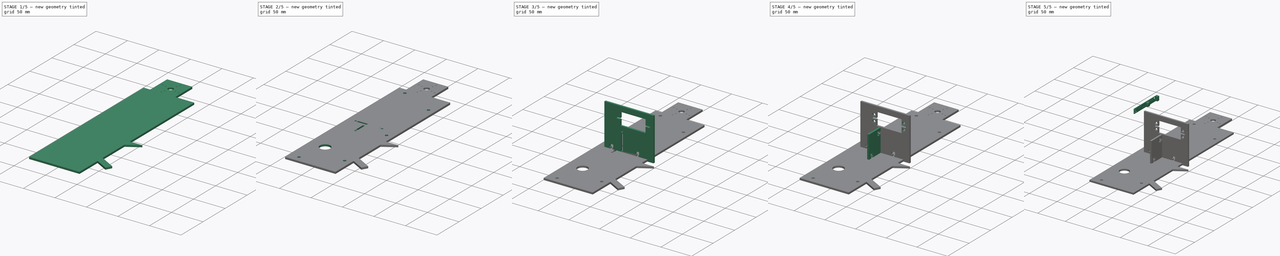
[diagram: build sequence overview — one tinted view per stage of 5, left to right]
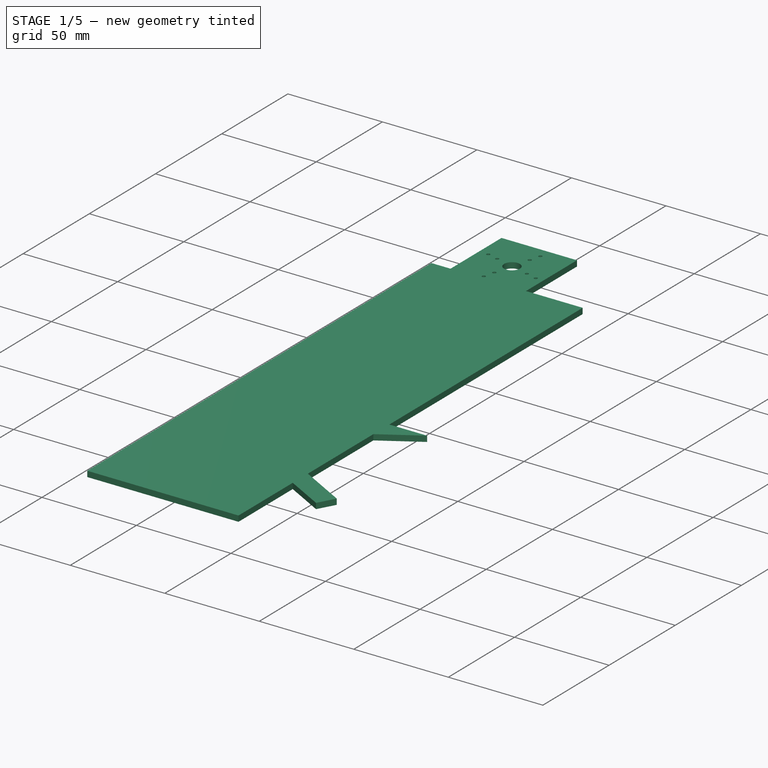
[diagram: stage 1 of 5 — iso view after this stage's code; geometry added in this stage tinted green]
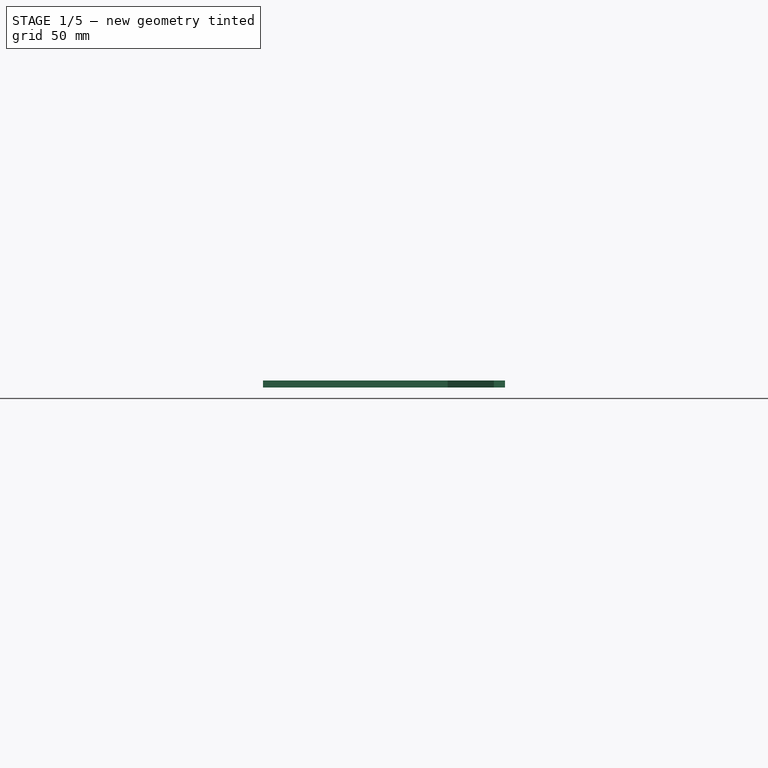
[diagram: stage 1 of 5 — front view after this stage's code; geometry added in this stage tinted green]
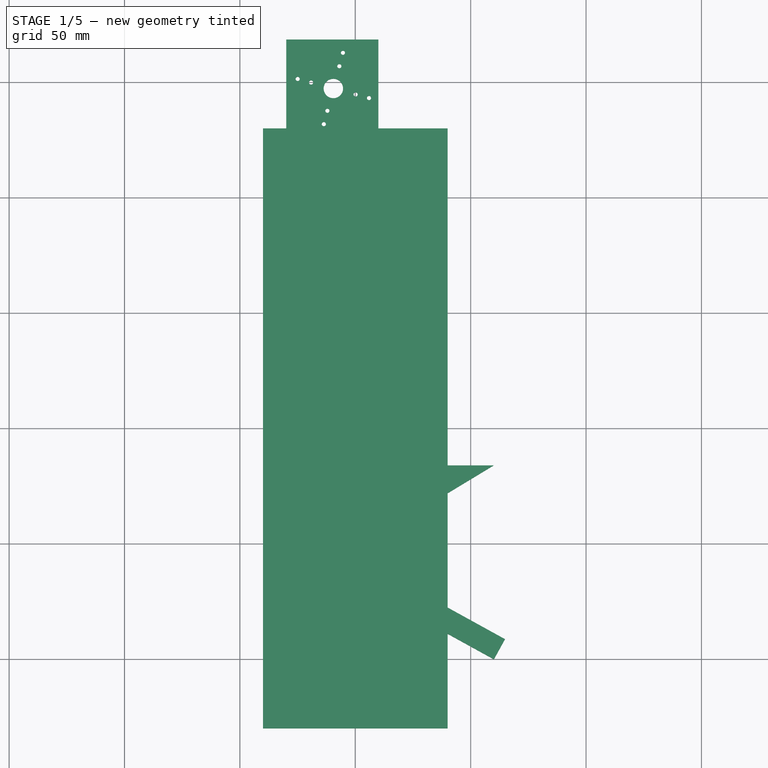
[diagram: stage 1 of 5 — top view after this stage's code; geometry added in this stage tinted green]
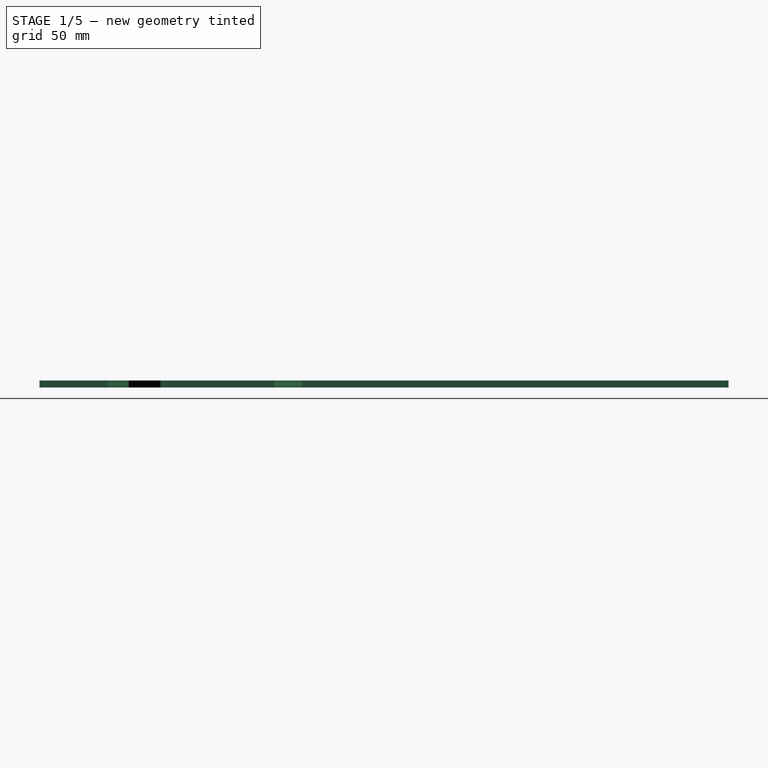
[diagram: stage 1 of 5 — right view after this stage's code; geometry added in this stage tinted green]
FCSTD DOCUMENT  (FreeCAD 0.20R29603 (Git))
Label: Alpha
License: All rights reserved
LicenseURL: http://en.wikipedia.org/wiki/All_rights_reserved
objects: Sketcher::SketchObject×14, Part::Feature×7, PartDesign::Pad×5, PartDesign::Body×5, PartDesign::Pocket×5, PartDesign::Hole×4, Part::Compound2×1
note: 54 computed .brp shape members not serialized (recipe doc carries the construction recipe); baked Part::Feature solids carry a one-line shape summary decoded from their .brp

FEATURE [PartDesign::Body] Body001  label="CameraHolder"
  Group = -> [Sketch001,Pad001,Sketch002,Hole,Sketch003,Hole001]
  Origin = -> Origin001
  Placement = pos=(-130,139,-9) rot=(0,1,0;1.5708rad)
  Tip = -> Hole001
FEATURE [Sketcher::SketchObject] Sketch
  FullyConstrained = true
  MapMode = 5
  Support = -> [XY_Plane]
  sketch-geometry (4):
    g0: LineSegment StartX=-40 StartY=130 StartZ=0 EndX=40 EndY=130 EndZ=0
    g1: LineSegment StartX=40 StartY=130 StartZ=0 EndX=40 EndY=-130 EndZ=0
    g2: LineSegment StartX=40 StartY=-130 StartZ=0 EndX=-40 EndY=-130 EndZ=0
    g3: LineSegment StartX=-40 StartY=-130 StartZ=0 EndX=-40 EndY=130 EndZ=0
  constraints (10):
    c: Coincident(g0,g1)
    c: Coincident(g1,g2)
    c: Coincident(g2,g3)
    c: Coincident(g3,g0)
    c: Horizontal(g2)
    c: Vertical(g3)
    c: Distance(g0) = 80
    c: Distance(g1) = 260
    c: Symmetric(g0,g0,g-2)
    c: Symmetric(g0,g1,g-1)
FEATURE [PartDesign::Pad] Pad
  Direction = (0,0,1)
  Length = 3
  Length2 = 10
  Profile = -> Sketch
  ReferenceAxis = -> Sketch [N_Axis]
  Type = 0
FEATURE [PartDesign::Body] Body  label="TopPanel"
  Group = -> [Sketch,Pad,Sketch004,Hole002,Sketch006,Pocket,Sketch012,Pocket003]
  Origin = -> Origin
  Placement = pos=(-170,141,81) rot=(0,0,1;0rad)
  Tip = -> Pocket003
FEATURE [Sketcher::SketchObject] Sketch013
  FullyConstrained = false
  MapMode = 5
  Support = -> [XY_Plane004]
  sketch-geometry (12):
    g0: LineSegment StartX=-29.905 StartY=168.516 StartZ=0 EndX=10 EndY=168.516 EndZ=0
    g1: LineSegment StartX=-10 StartY=-61.484 StartZ=0 EndX=60.0656 EndY=-100.095 EndZ=0
    g2: LineSegment StartX=60.0656 StartY=-100.095 StartZ=0 EndX=64.892 EndY=-91.3367 EndZ=0
    g3: LineSegment StartX=64.892 StartY=-91.3367 StartZ=0 EndX=12.3428 EndY=-62.3785 EndZ=0
    g4: LineSegment StartX=11.9975 StartY=-45.0614 StartZ=0 EndX=60 EndY=-16.0562 EndZ=0
    g5: LineSegment StartX=60 StartY=-16.0562 StartZ=0 EndX=10 EndY=-16.0562 EndZ=0
    g6: ArcOfCircle CenterX=17.1692 CenterY=-53.6203 CenterZ=0 NormalX=0 NormalY=0 NormalZ=1 AngleXU=0 Radius=10 StartAngle=2.11433 EndAngle=4.20873
    g7: GeomPoint X=10 Y=-16.0562 Z=0
    g8: LineSegment StartX=10 StartY=-16.0562 StartZ=0 EndX=10 EndY=168.516 EndZ=0
    g9: LineSegment StartX=-29.905 StartY=168.516 StartZ=0 EndX=-29.905 EndY=127.016 EndZ=0
    g10: LineSegment StartX=-10 StartY=127.016 StartZ=0 EndX=-29.905 EndY=127.016 EndZ=0
    g11: LineSegment StartX=-10 StartY=-61.484 StartZ=0 EndX=-10 EndY=127.016 EndZ=0
  constraints (30):
    c: Coincident(g2,g1)
    c: Angle(g2,g1) = 1.5708
    c: Coincident(g3,g2)
    c: Angle(g3,g2) = 1.5708
    c: Coincident(g5,g7)
    c: Coincident(g8,g5)
    c: Coincident(g8,g0)
    c: Vertical(g8)
    c: Tangent(g6,g3) = 1.5708
    c: Tangent(g4,g6) = 1.5708
    c: Angle(g3,g4) = 1.0472
    c: Coincident(g4,g5)
    c: Distance(g3) = 60
    c: Horizontal(g5)
    c: Distance(g2) = 10
    c: Distance(g1) = 80
    c: Distance(g5) = 50
    c: Diameter(g6) = 20
    c: Distance(g-1,g8) = 10
    c: Coincident(g9,g0)
    c: Coincident(g11,g1)
    c: Coincident(g11,g10)
    c: Vertical(g11)
    c: Distance(g-1,g11) = 10
    c: Coincident(g10,g9)
    c: Vertical(g9)
    c: Horizontal(g0)
    c: Horizontal(g10)
    c: Distance(g9) = 41.5
    c: Distance(g11) = 188.5
FEATURE [PartDesign::Pad] Pad004
  Direction = (0,0,1)
  Length = 3
  Length2 = 10
  Profile = -> Sketch013
  ReferenceAxis = -> Sketch013 [N_Axis]
  Type = 0
FEATURE [Sketcher::SketchObject] Sketch014
  FullyConstrained = true
  MapMode = 5
  Placement = pos=(0,0,3) rot=(0,0,1;0rad)
  Support = -> [Pad004]
  sketch-geometry (9):
    g0: Circle CenterX=-13.63 CenterY=131.86 CenterZ=0 NormalX=0 NormalY=0 NormalZ=1 AngleXU=0 Radius=0.9
    g1: Circle CenterX=-12.08 CenterY=137.65 CenterZ=0 NormalX=0 NormalY=0 NormalZ=1 AngleXU=0 Radius=0.9
    g2: Circle CenterX=5.95 CenterY=143.17 CenterZ=0 NormalX=0 NormalY=0 NormalZ=1 AngleXU=0 Radius=0.9
    g3: Circle CenterX=-6.9 CenterY=156.96 CenterZ=0 NormalX=0 NormalY=0 NormalZ=1 AngleXU=0 Radius=0.9
    g4: Circle CenterX=-5.35 CenterY=162.78 CenterZ=0 NormalX=0 NormalY=0 NormalZ=1 AngleXU=0 Radius=0.9
    g5: Circle CenterX=-19.16 CenterY=149.9 CenterZ=0 NormalX=0 NormalY=0 NormalZ=1 AngleXU=0 Radius=0.9
    g6: Circle CenterX=-24.96 CenterY=151.46 CenterZ=0 NormalX=0 NormalY=0 NormalZ=1 AngleXU=0 Radius=0.9
    g7: Circle CenterX=0.15 CenterY=144.73 CenterZ=0 NormalX=0 NormalY=0 NormalZ=1 AngleXU=0 Radius=0.9
    g8: Circle CenterX=-9.5 CenterY=147.3 CenterZ=0 NormalX=0 NormalY=0 NormalZ=1 AngleXU=0 Radius=4.2
  constraints (27):
    c: Radius(g0) = 0.9
    c: Radius(g1) = 0.9
    c: Radius(g2) = 0.9
    c: Radius(g7) = 0.9
    c: Distance(g1,g-2) = 12.08
    c: Distance(g0,g-2) = 13.63
    c: Distance(g7,g-2) = 0.15
    c: Distance(g2,g-2) = 5.95
    c: Radius(g5) = 0.9
    c: Distance(g5,g-2) = 19.16
    c: Radius(g6) = 0.9
    c: Distance(g6,g-2) = 24.96
    c: Radius(g3) = 0.9
    c: Distance(g3,g-2) = 6.9
    c: Radius(g4) = 0.9
    c: Distance(g4,g-2) = 5.35
    c: Diameter(g8) = 8.4
    c: Distance(g8,g-2) = 9.5
    c: Distance(g8,g-1) = 147.3
    c: DistanceY(g8,g5) = 2.6
    c: DistanceY(g5,g6) = 1.56
    c: DistanceY(g8,g3) = 9.66
    c: DistanceY(g3,g4) = 5.82
    c: DistanceY(g7,g8) = 2.57
    c: DistanceY(g2,g7) = 1.56
    c: DistanceY(g1,g8) = 9.65
    c: DistanceY(g0,g1) = 5.79
FEATURE [PartDesign::Pocket] Pocket004
  BaseFeature = -> Pad004
  Direction = (0,0,-1)
  Length = 5
  Length2 = 5
  Profile = -> Sketch014
  ReferenceAxis = -> Sketch014 [N_Axis]
  Type = 1
FEATURE [PartDesign::Body] Body004  label="Claw"
  Group = -> [Sketch013,Pad004,Sketch014,Pocket004]
  Origin = -> Origin004
  Placement = pos=(-71.1144,173.5,12.1738) rot=(0.935113,-0.250563,0.250563;1.63783rad)
  Tip = -> Pocket004
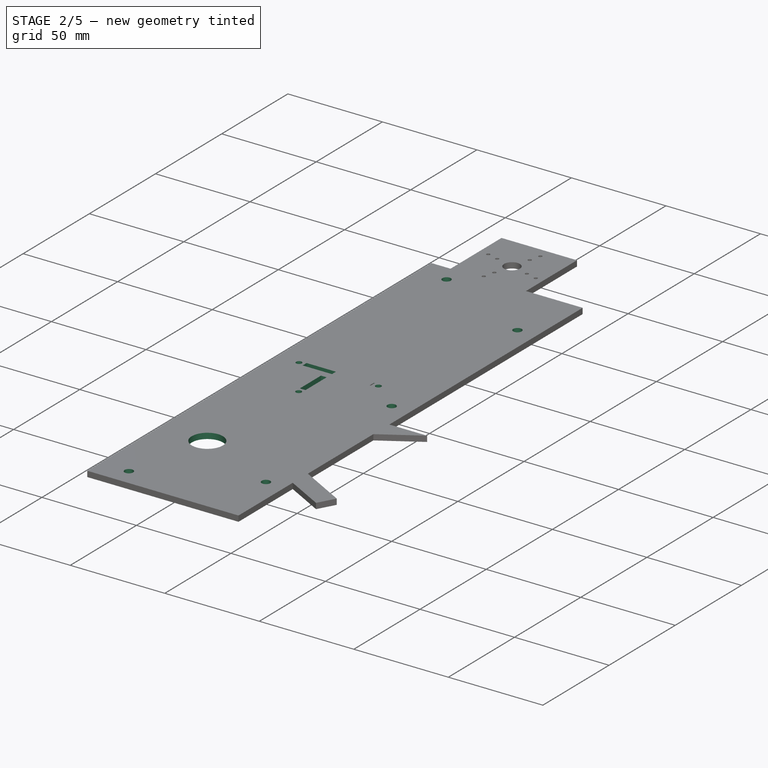
[diagram: stage 2 of 5 — iso view after this stage's code; geometry added in this stage tinted green]
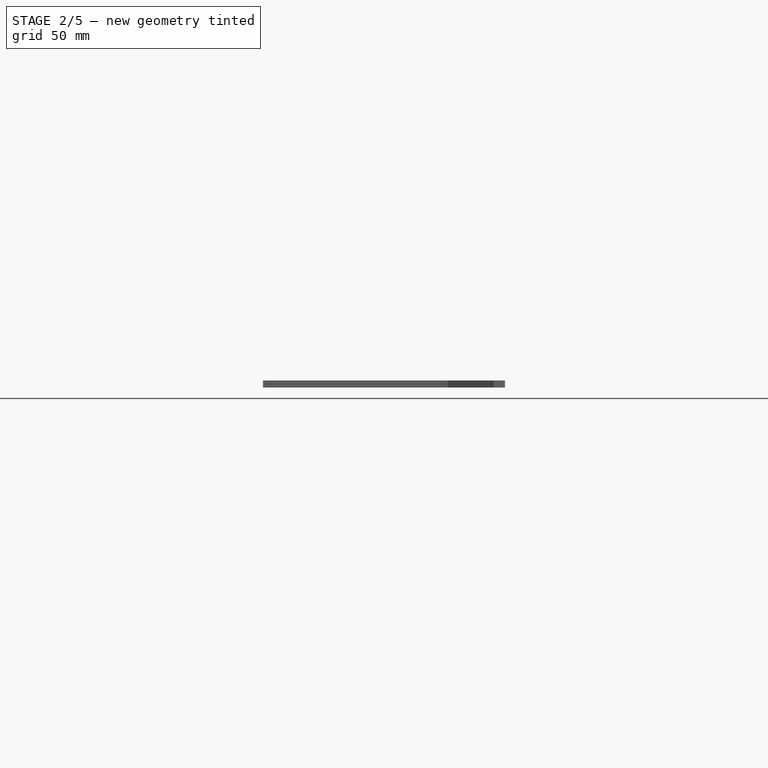
[diagram: stage 2 of 5 — front view after this stage's code; geometry added in this stage tinted green]
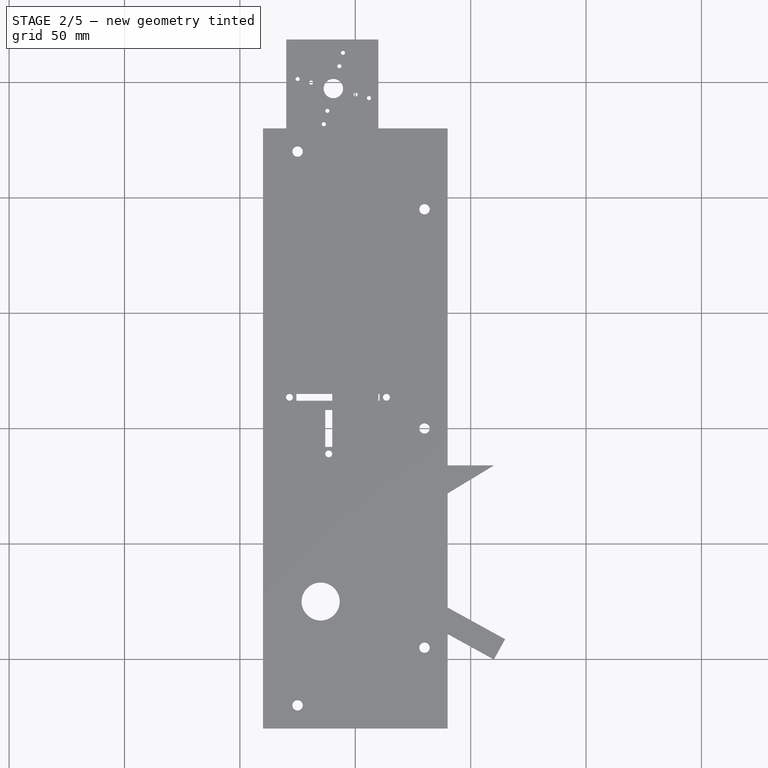
[diagram: stage 2 of 5 — top view after this stage's code; geometry added in this stage tinted green]
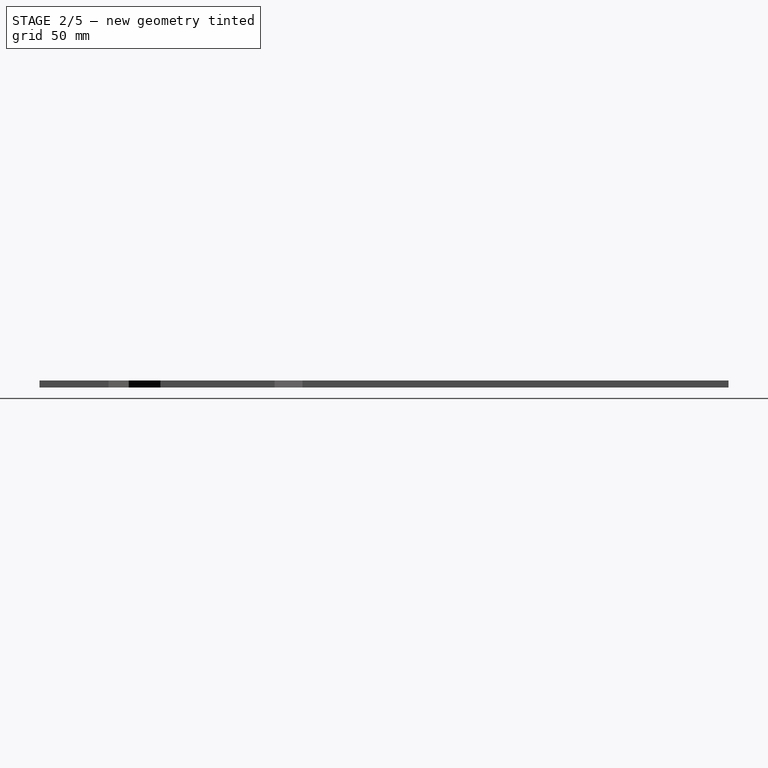
[diagram: stage 2 of 5 — right view after this stage's code; geometry added in this stage tinted green]
FEATURE [Sketcher::SketchObject] Sketch004
  FullyConstrained = true
  MapMode = 5
  Placement = pos=(0,0,3) rot=(0,0,1;0rad)
  Support = -> [Pad]
  sketch-geometry (6):
    g0: Circle CenterX=-25 CenterY=-120 CenterZ=0 NormalX=0 NormalY=0 NormalZ=1 AngleXU=0 Radius=2
    g1: Circle CenterX=-25 CenterY=120 CenterZ=0 NormalX=0 NormalY=0 NormalZ=1 AngleXU=0 Radius=2
    g2: Circle CenterX=30 CenterY=0 CenterZ=0 NormalX=0 NormalY=0 NormalZ=1 AngleXU=0 Radius=2
    g3: Circle CenterX=30 CenterY=-95 CenterZ=0 NormalX=0 NormalY=0 NormalZ=1 AngleXU=0 Radius=2
    g4: Circle CenterX=30 CenterY=95 CenterZ=0 NormalX=0 NormalY=0 NormalZ=1 AngleXU=0 Radius=2
    g5: LineSegment StartX=30 StartY=-95 StartZ=0 EndX=30 EndY=95 EndZ=0
  constraints (15):
    c: PointOnObject(g2,g-1)
    c: Equal(g0,g3)
    c: Equal(g3,g2)
    c: Equal(g2,g4)
    c: Equal(g4,g1)
    c: Coincident(g5,g3)
    c: Coincident(g5,g4)
    c: PointOnObject(g2,g5)
    c: Symmetric(g3,g4,g-1)
    c: Symmetric(g0,g1,g-1)
    c: Diameter(g0) = 4
    c: Distance(g5) = 190
    c: Distance(g0,g1) = 240
    c: Distance(g2,g-2) = 30
    c: Distance(g0,g-2) = 25
FEATURE [PartDesign::Hole] Hole002
  BaseFeature = -> Pad
  CustomThreadClearance = 0
  Depth = 549.533
  DepthType = 1
  Diameter = 4.5
  DrillForDepth = false
  DrillPoint = 1
  DrillPointAngle = 118
  HoleCutCountersinkAngle = 90
  HoleCutCustomValues = false
  HoleCutDepth = 0
  HoleCutDiameter = 6.1
  HoleCutType = 0
  ModelThread = false
  Profile = -> Sketch004
  Tapered = false
  TaperedAngle = 90
  ThreadClass = 0
  ThreadDepth = 549.533
  ThreadDepthType = 0
  ThreadDirection = 0
  ThreadFit = 0
  ThreadSize = 11
  ThreadType = 1
  Threaded = false
  UseCustomThreadClearance = false
FEATURE [Sketcher::SketchObject] Sketch006
  FullyConstrained = true
  MapMode = 5
  Placement = pos=(0,0,3) rot=(0,0,1;0rad)
  Support = -> [Hole002]
  sketch-geometry (11):
    g0: LineSegment StartX=-25.5 StartY=12 StartZ=0 EndX=10.5 EndY=12 EndZ=0
    g1: LineSegment StartX=10.5 StartY=12 StartZ=0 EndX=10.5 EndY=15 EndZ=0
    g2: LineSegment StartX=10.5 StartY=15 StartZ=0 EndX=-25.5 EndY=15 EndZ=0
    g3: LineSegment StartX=-25.5 StartY=15 StartZ=0 EndX=-25.5 EndY=12 EndZ=0
    g4: Circle CenterX=-28.5 CenterY=13.5 CenterZ=0 NormalX=0 NormalY=0 NormalZ=1 AngleXU=0 Radius=1.5
    g5: Circle CenterX=13.5 CenterY=13.5 CenterZ=0 NormalX=0 NormalY=0 NormalZ=1 AngleXU=0 Radius=1.5
    g6: Circle CenterX=-11.5 CenterY=-11 CenterZ=0 NormalX=0 NormalY=0 NormalZ=1 AngleXU=0 Radius=1.5
    g7: LineSegment StartX=-10 StartY=-8 StartZ=0 EndX=-13 EndY=-8 EndZ=0
    g8: LineSegment StartX=-13 StartY=-8 StartZ=0 EndX=-13 EndY=8 EndZ=0
    g9: LineSegment StartX=-13 StartY=8 StartZ=0 EndX=-10 EndY=8 EndZ=0
    g10: LineSegment StartX=-10 StartY=8 StartZ=0 EndX=-10 EndY=-8 EndZ=0
  constraints (33):
    c: Coincident(g0,g1)
    c: Coincident(g1,g2)
    c: Coincident(g2,g3)
    c: Coincident(g3,g0)
    c: Horizontal(g0)
    c: Horizontal(g2)
    c: Vertical(g1)
    c: Vertical(g3)
    c: Distance(g3) = 3
    c: Equal(g4,g5)
    c: Diameter(g4) = 3
    c: Distance(g0) = 36
    c: Distance(g0,g-2) = 10.5
    c: Distance(g5,g1) = 3
    c: DistanceY(g0,g4) = 1.5
    c: DistanceY(g0,g5) = 1.5
    c: Distance(g-1,g0) = 12
    c: Coincident(g7,g8)
    c: Coincident(g8,g9)
    c: Coincident(g9,g10)
    c: Coincident(g10,g7)
    c: Horizontal(g7)
    c: Horizontal(g9)
    c: Vertical(g8)
    c: Vertical(g10)
    c: Distance(g7) = 3
    c: Diameter(g6) = 3
    c: DistanceX(g7,g6) = 1.5
    c: Distance(g10) = 16
    c: Distance(g6,g7) = 3
    c: Distance(g9,g0) = 4
    c: Distance(g9,g-2) = 10
    c: Distance(g4,g3) = 3
FEATURE [PartDesign::Pocket] Pocket
  BaseFeature = -> Hole002
  Direction = (0,0,-1)
  Length = 5
  Length2 = 5
  Profile = -> Sketch006
  ReferenceAxis = -> Sketch006 [N_Axis]
  Type = 1
FEATURE [PartDesign::Body] Body002  label="ServoHolder"
  Group = -> [Sketch005,Pad002,Sketch008,Pocket001,Sketch009,Pocket002,Sketch011,Hole003]
  Origin = -> Origin002
  Placement = pos=(-180,156,84) rot=(0,0,1;0rad)
  Tip = -> Hole003
FEATURE [Part::Feature] Solid003  label="StdServo-X-arm"
  Placement = pos=(-153,170,135) rot=(0.983106,-0.129428,0.129428;1.58783rad)
  shape: bbox 37.36 x 6.2 x 37.36 mm, 54 faces (baked)
FEATURE [Part::Feature] Feature001  label="object001"
  Placement = pos=(37,154,-159) rot=(0,0,1;1.5708rad)
  shape: bbox 84 x 84 x 155 mm, 25 faces, 2 solids (baked)
FEATURE [Part::Feature] Feature  label="Rover-E3-base-dummie001"
  Placement = pos=(-533,0,-84) rot=(0,0,1;0rad)
  shape: bbox 548.9 x 459 x 422.4 mm, 2886 faces, 47 solids (baked)
FEATURE [Part::Feature] Solid004  label="R16-503BD-G"
  Placement = pos=(-185,66,85) rot=(0,1,0;3.14159rad)
  shape: bbox 18 x 18 x 27.5 mm, 38 faces (baked)
FEATURE [Sketcher::SketchObject] Sketch012
  FullyConstrained = true
  MapMode = 5
  Placement = pos=(0,0,0) rot=(1,0,0;3.14159rad)
  Support = -> [Pocket]
  sketch-geometry (1):
    g0: Circle CenterX=-15 CenterY=75 CenterZ=0 NormalX=0 NormalY=0 NormalZ=1 AngleXU=0 Radius=8.25
  constraints (3):
    c: Diameter(g0) = 16.5
    c: Distance(g0,g-2) = 15
    c: Distance(g0,g-1) = 75
FEATURE [PartDesign::Pocket] Pocket003
  BaseFeature = -> Pocket
  Direction = (0,0,1)
  Length = 5
  Length2 = 5
  Profile = -> Sketch012
  ReferenceAxis = -> Sketch012 [N_Axis]
  Type = 1
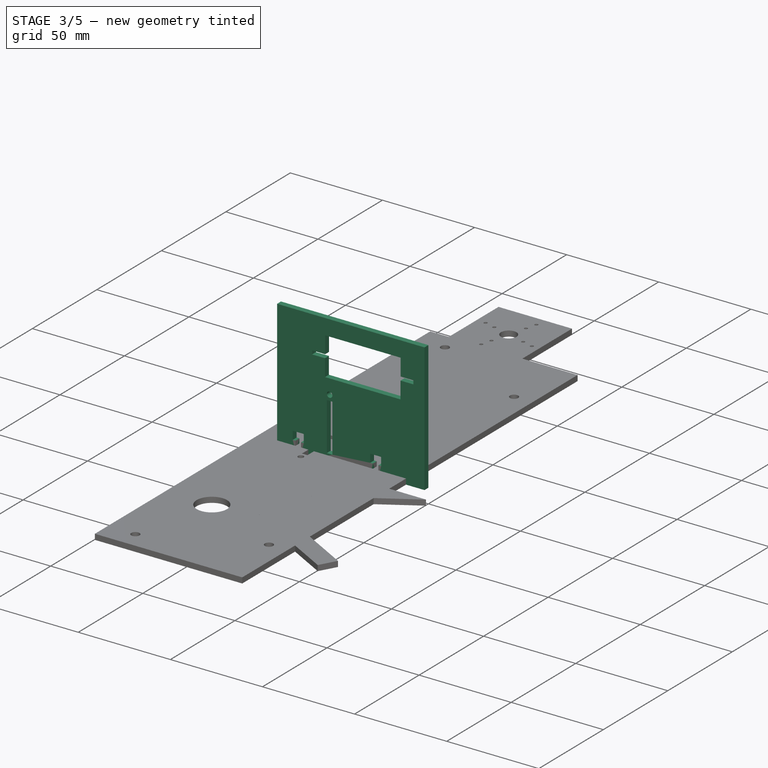
[diagram: stage 3 of 5 — iso view after this stage's code; geometry added in this stage tinted green]
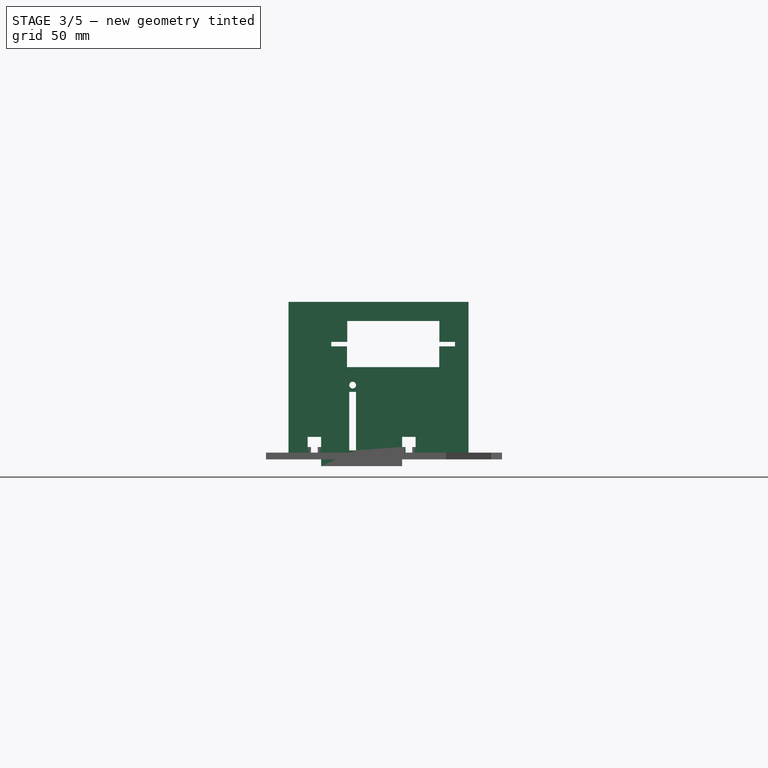
[diagram: stage 3 of 5 — front view after this stage's code; geometry added in this stage tinted green]
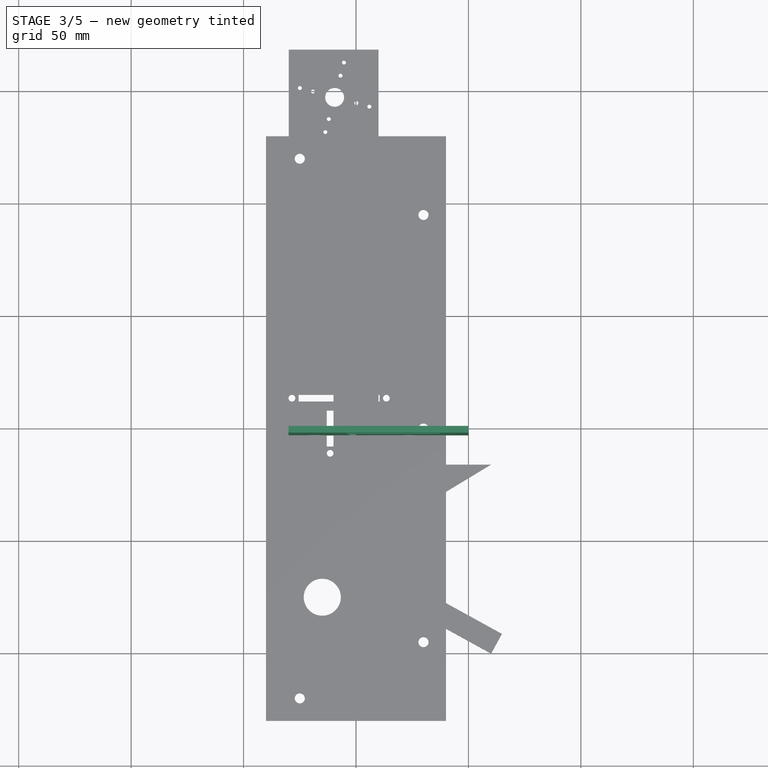
[diagram: stage 3 of 5 — top view after this stage's code; geometry added in this stage tinted green]
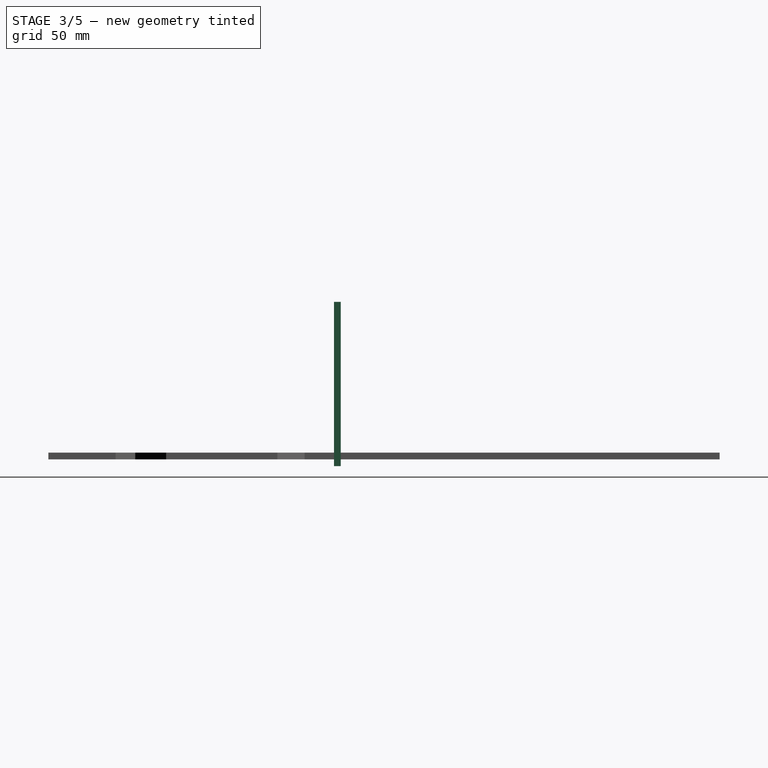
[diagram: stage 3 of 5 — right view after this stage's code; geometry added in this stage tinted green]
FEATURE [Sketcher::SketchObject] Sketch005
  FullyConstrained = true
  MapMode = 5
  Placement = pos=(0,0,0) rot=(1,0,0;1.5708rad)
  Support = -> [XZ_Plane002]
  sketch-geometry (24):
    g0: LineSegment StartX=-30 StartY=0 StartZ=0 EndX=-30 EndY=70 EndZ=0
    g1: LineSegment StartX=-30 StartY=70 StartZ=0 EndX=50 EndY=70 EndZ=0
    g2: LineSegment StartX=-30 StartY=0 StartZ=0 EndX=-20 EndY=0 EndZ=0
    g3: LineSegment StartX=-17 StartY=0 StartZ=0 EndX=-15.5 EndY=0 EndZ=0
    g4: LineSegment StartX=-15.5 StartY=0 StartZ=0 EndX=-15.5 EndY=-3 EndZ=0
    g5: LineSegment StartX=-15.5 StartY=-3 StartZ=0 EndX=20.5 EndY=-3 EndZ=0
    g6: LineSegment StartX=20.5 StartY=-3 StartZ=0 EndX=20.5 EndY=0 EndZ=0
    g7: LineSegment StartX=20.5 StartY=0 StartZ=0 EndX=22 EndY=0 EndZ=0
    g8: LineSegment StartX=50 StartY=0 StartZ=0 EndX=25 EndY=2.37964e-11 EndZ=0
    g9: LineSegment StartX=-20 StartY=0 StartZ=0 EndX=-20 EndY=5.5 EndZ=0
    g10: LineSegment StartX=-17 StartY=0 StartZ=0 EndX=-17 EndY=5.5 EndZ=0
    g11: LineSegment StartX=-17 StartY=5.5 StartZ=0 EndX=-15.5 EndY=5.5 EndZ=0
    g12: LineSegment StartX=-15.5 StartY=5.5 StartZ=0 EndX=-15.5 EndY=10 EndZ=0
    g13: LineSegment StartX=-15.5 StartY=10 StartZ=0 EndX=-21.5 EndY=10 EndZ=0
    g14: LineSegment StartX=-21.5 StartY=10 StartZ=0 EndX=-21.5 EndY=5.5 EndZ=0
    g15: LineSegment StartX=-21.5 StartY=5.5 StartZ=0 EndX=-20 EndY=5.5 EndZ=0
    g16: LineSegment StartX=25 StartY=2.37964e-11 StartZ=0 EndX=25 EndY=5.5 EndZ=0
    g17: LineSegment StartX=25 StartY=5.5 StartZ=0 EndX=26.5 EndY=5.5 EndZ=0
    g18: LineSegment StartX=26.5 StartY=5.5 StartZ=0 EndX=26.5 EndY=10 EndZ=0
    g19: LineSegment StartX=26.5 StartY=10 StartZ=0 EndX=20.5 EndY=10 EndZ=0
    g20: LineSegment StartX=20.5 StartY=10 StartZ=0 EndX=20.5 EndY=5.5 EndZ=0
    g21: LineSegment StartX=20.5 StartY=5.5 StartZ=0 EndX=22 EndY=5.5 EndZ=0
    g22: LineSegment StartX=22 StartY=5.5 StartZ=0 EndX=22 EndY=0 EndZ=0
    g23: LineSegment StartX=50 StartY=70 StartZ=0 EndX=50 EndY=0 EndZ=0
  constraints (72):
    c: Coincident(g0,g1)
    c: Vertical(g0)
    c: PointOnObject(g8,g-1)
    c: Coincident(g2,g0)
    c: PointOnObject(g2,g-1)
    c: PointOnObject(g3,g-1)
    c: PointOnObject(g3,g-1)
    c: Coincident(g4,g3)
    c: Vertical(g4)
    c: Coincident(g5,g4)
    c: Horizontal(g5)
    c: Coincident(g6,g5)
    c: Vertical(g6)
    c: Coincident(g7,g6)
    c: Coincident(g9,g2)
    c: Vertical(g9)
    c: Coincident(g10,g3)
    c: Vertical(g10)
    c: Coincident(g11,g10)
    c: Horizontal(g11)
    c: Coincident(g12,g11)
    c: Vertical(g12)
    c: Coincident(g13,g12)
    c: Horizontal(g13)
    c: Coincident(g14,g13)
    c: Vertical(g14)
    c: Coincident(g15,g14)
    c: Coincident(g15,g9)
    c: Coincident(g16,g8)
    c: Coincident(g17,g16)
    c: Coincident(g18,g17)
    c: Coincident(g19,g18)
    c: Coincident(g20,g19)
    c: Coincident(g21,g20)
    c: Coincident(g22,g21)
    c: Coincident(g22,g7)
    c: Horizontal(g15)
    c: Equal(g9,g10)
    c: Distance(g2,g10) = 3
    c: Equal(g15,g11)
    c: Distance(g12) = 4.5
    c: Distance(g10) = 5.5
    c: Distance(g13) = 6
    c: Distance(g1) = 80
    c: Distance(g4) = 3
    c: Distance(g2) = 10
    c: Distance(g0) = 70
    c: Horizontal(g2)
    c: Distance(g0,g-2) = 30
    c: Coincident(g23,g1)
    c: Coincident(g23,g8)
    c: Vertical(g23)
    c: Equal(g22,g16)
    c: Equal(g20,g18)
    c: Equal(g21,g17)
    c: Horizontal(g7)
    c: Horizontal(g21)
    c: Vertical(g20)
    c: Vertical(g22)
    c: Vertical(g16)
    c: Vertical(g18)
    c: Horizontal(g17)
    c: Distance(g19) = 6
    c: Distance(g21,g16) = 3
    c: Distance(g18) = 4.5
    c: Distance(g16) = 5.5
    c: PointOnObject(g7,g-1)
    c: Horizontal(g19)
    c: Distance(g8) = 25
    c: Horizontal(g1)
    c: Equal(g11,g3)
    c: Equal(g21,g7)
FEATURE [PartDesign::Pad] Pad002
  Direction = (0,-1,-2e-16)
  Length = 3
  Length2 = 10
  Placement = pos=(0,0,0) rot=(1,0,0;1.5708rad)
  Profile = -> Sketch005
  ReferenceAxis = -> Sketch005 [N_Axis]
  Type = 0
FEATURE [PartDesign::Body] Body003  label="ServoHolderRetainer"
  Group = -> [Sketch007,Pad003]
  Origin = -> Origin003
  Placement = pos=(-183,153,84) rot=(0,0,1;0rad)
  Tip = -> Pad003
FEATURE [Sketcher::SketchObject] Sketch008
  FullyConstrained = true
  MapMode = 5
  Placement = pos=(0,-1e-16,0) rot=(-1,0,0;1.5708rad)
  Support = -> [Pad002]
  sketch-geometry (5):
    g0: LineSegment StartX=-3 StartY=-4 StartZ=0 EndX=0 EndY=-4 EndZ=0
    g1: LineSegment StartX=0 StartY=-4 StartZ=0 EndX=0 EndY=-30 EndZ=0
    g2: LineSegment StartX=0 StartY=-30 StartZ=0 EndX=-3 EndY=-30 EndZ=0
    g3: LineSegment StartX=-3 StartY=-30 StartZ=0 EndX=-3 EndY=-4 EndZ=0
    g4: Circle CenterX=-1.5 CenterY=-33 CenterZ=0 NormalX=0 NormalY=0 NormalZ=1 AngleXU=0 Radius=1.5
  constraints (15):
    c: Coincident(g0,g1)
    c: Coincident(g1,g2)
    c: Coincident(g2,g3)
    c: Coincident(g3,g0)
    c: Horizontal(g0)
    c: Horizontal(g2)
    c: Vertical(g1)
    c: Vertical(g3)
    c: PointOnObject(g1,g-2)
    c: Distance(g2) = 3
    c: Distance(g3) = 26
    c: Distance(g0,g-1) = 4
    c: Diameter(g4) = 3
    c: Distance(g4,g-2) = 1.5
    c: Distance(g4,g2) = 3
FEATURE [PartDesign::Pocket] Pocket001
  BaseFeature = -> Pad002
  Direction = (0,-1,-2e-16)
  Length = 5
  Length2 = 5
  Placement = pos=(0,0,0) rot=(1,0,0;1.5708rad)
  Profile = -> Sketch008
  ReferenceAxis = -> Sketch008 [N_Axis]
  Type = 1
FEATURE [Part::Feature] Solid002  label="MG995-360"
  Placement = pos=(-153,123,135.3) rot=(0.57735,0.57735,0.57735;4.18879rad)
  shape: bbox 54 x 44.8 x 20 mm, 79 faces (baked)
FEATURE [Sketcher::SketchObject] Sketch009
  FullyConstrained = false
  MapMode = 5
  Placement = pos=(0,-1e-16,0) rot=(-1,0,0;1.5708rad)
  Support = -> [Pocket001]
  sketch-geometry (12):
    g0: LineSegment StartX=-4 StartY=-41 StartZ=0 EndX=37 EndY=-41 EndZ=0
    g1: LineSegment StartX=37.089 StartY=-61.5 StartZ=0 EndX=-3.91101 EndY=-61.5 EndZ=0
    g2: LineSegment StartX=37 StartY=-41 StartZ=0 EndX=37 EndY=-50.25 EndZ=0
    g3: LineSegment StartX=37.089 StartY=-61.5 StartZ=0 EndX=37.089 EndY=-52.25 EndZ=0
    g4: LineSegment StartX=37.089 StartY=-52.25 StartZ=0 EndX=44 EndY=-52.25 EndZ=0
    g5: LineSegment StartX=44 StartY=-52.25 StartZ=0 EndX=44 EndY=-50.25 EndZ=0
    g6: LineSegment StartX=44 StartY=-50.25 StartZ=0 EndX=37 EndY=-50.25 EndZ=0
    g7: LineSegment StartX=-4 StartY=-41 StartZ=0 EndX=-4 EndY=-50.25 EndZ=0
    g8: LineSegment StartX=-3.91101 StartY=-61.5 StartZ=0 EndX=-3.91101 EndY=-52.25 EndZ=0
    g9: LineSegment StartX=-3.91101 StartY=-52.25 StartZ=0 EndX=-11 EndY=-52.25 EndZ=0
    g10: LineSegment StartX=-11 StartY=-52.25 StartZ=0 EndX=-11 EndY=-50.25 EndZ=0
    g11: LineSegment StartX=-11 StartY=-50.25 StartZ=0 EndX=-4 EndY=-50.25 EndZ=0
  constraints (35):
    c: Horizontal(g0)
    c: Horizontal(g1)
    c: Distance(g1) = 41
    c: Distance(g0,g-2) = 4
    c: Distance(g0,g-1) = 41
    c: Coincident(g2,g0)
    c: Vertical(g2)
    c: Coincident(g3,g1)
    c: Vertical(g3)
    c: Coincident(g4,g3)
    c: Horizontal(g4)
    c: Coincident(g5,g4)
    c: Vertical(g5)
    c: Coincident(g6,g5)
    c: Coincident(g6,g2)
    c: Horizontal(g6)
    c: Equal(g2,g3)
    c: Distance(g6) = 7
    c: Equal(g0,g1)
    c: Coincident(g7,g0)
    c: Vertical(g7)
    c: Coincident(g8,g1)
    c: Vertical(g8)
    c: Coincident(g9,g8)
    c: Horizontal(g9)
    c: Coincident(g10,g9)
    c: Vertical(g10)
    c: Coincident(g11,g10)
    c: Coincident(g11,g7)
    c: Horizontal(g11)
    c: Distance(g0,g1) = 20.5
    c: Distance(g11) = 7
    c: Equal(g7,g8)
    c: Distance(g5) = 2
    c: Distance(g10) = 2
FEATURE [PartDesign::Pocket] Pocket002
  BaseFeature = -> Pocket001
  Direction = (0,-1,2e-16)
  Length = 5
  Length2 = 5
  Placement = pos=(0,0,0) rot=(1,0,0;1.5708rad)
  Profile = -> Sketch009
  ReferenceAxis = -> Sketch009 [N_Axis]
  Type = 1
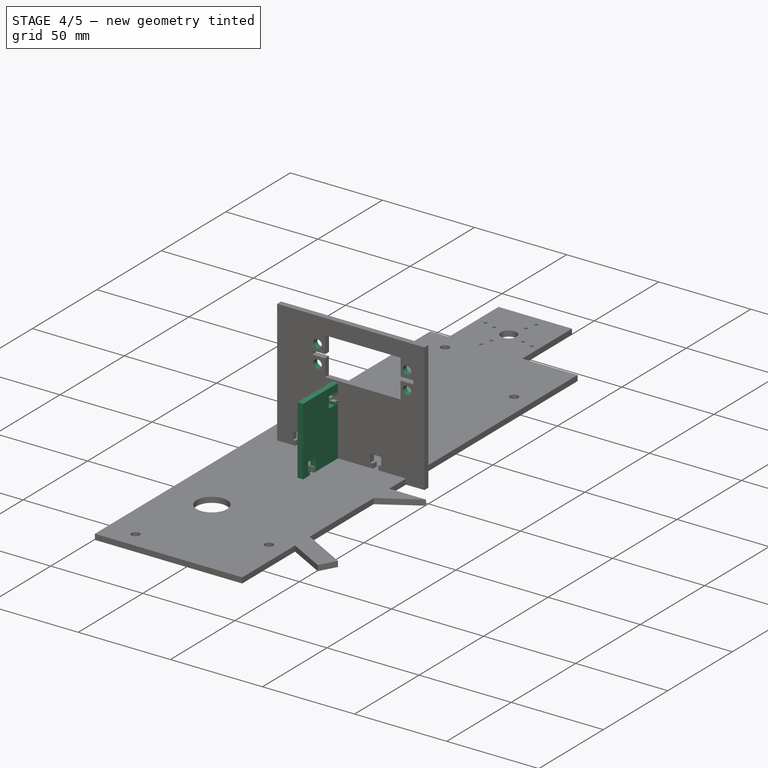
[diagram: stage 4 of 5 — iso view after this stage's code; geometry added in this stage tinted green]
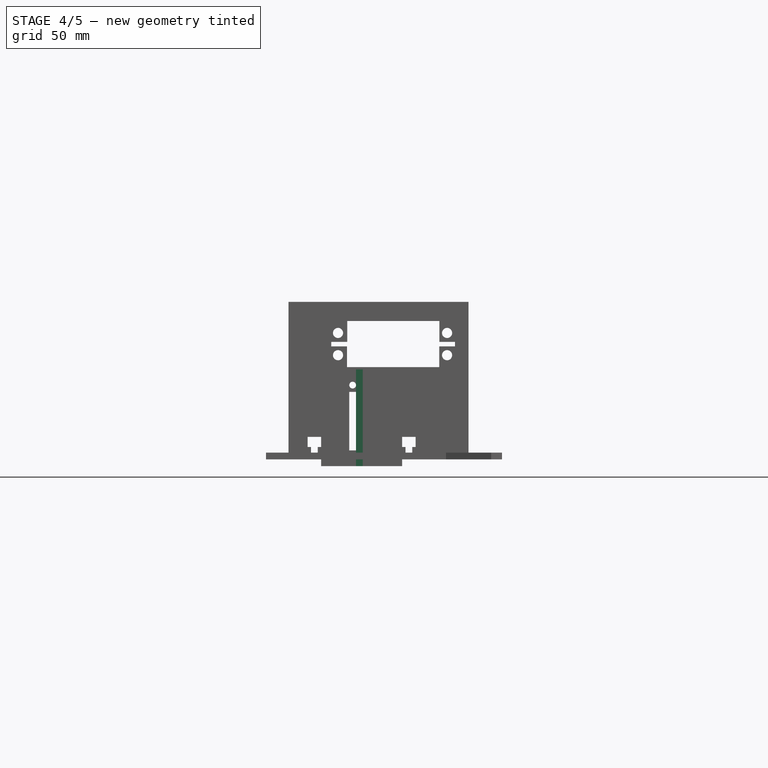
[diagram: stage 4 of 5 — front view after this stage's code; geometry added in this stage tinted green]
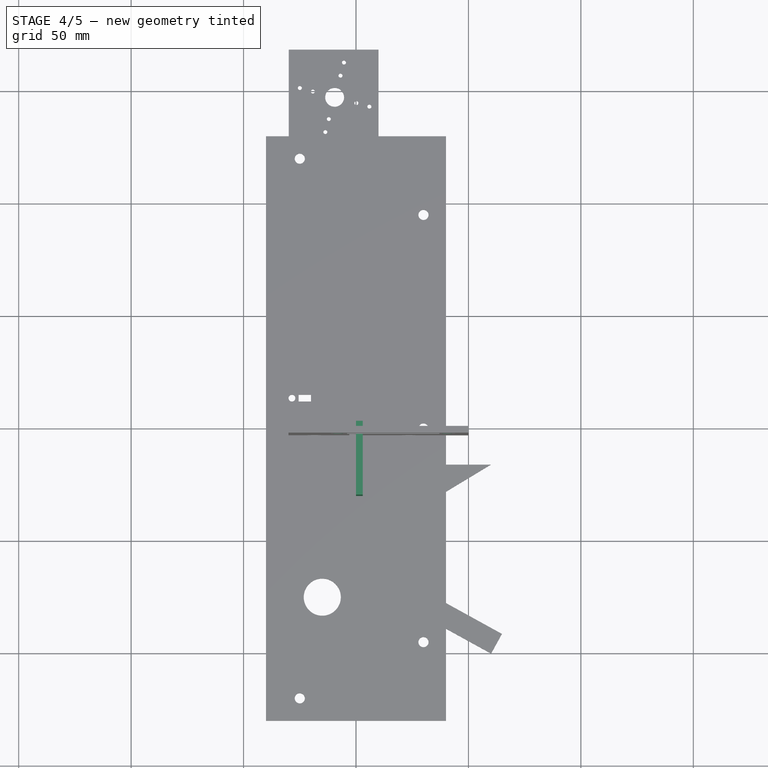
[diagram: stage 4 of 5 — top view after this stage's code; geometry added in this stage tinted green]
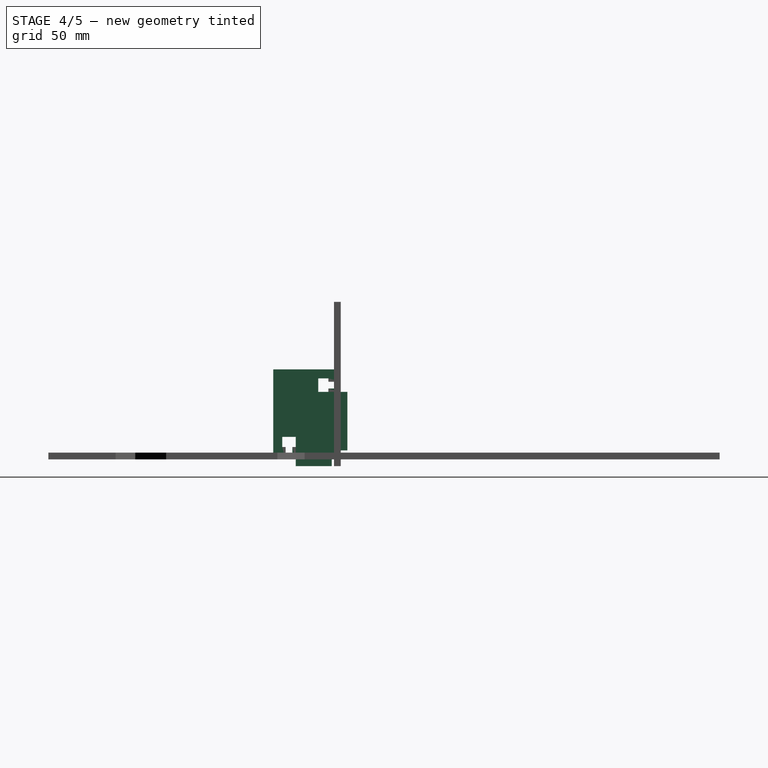
[diagram: stage 4 of 5 — right view after this stage's code; geometry added in this stage tinted green]
FEATURE [Sketcher::SketchObject] Sketch001
  FullyConstrained = true
  MapMode = 5
  Support = -> [XY_Plane001]
  sketch-geometry (4):
    g0: LineSegment StartX=-20 StartY=35 StartZ=0 EndX=20 EndY=35 EndZ=0
    g1: LineSegment StartX=20 StartY=35 StartZ=0 EndX=20 EndY=-35 EndZ=0
    g2: LineSegment StartX=20 StartY=-35 StartZ=0 EndX=-20 EndY=-35 EndZ=0
    g3: LineSegment StartX=-20 StartY=-35 StartZ=0 EndX=-20 EndY=35 EndZ=0
  constraints (10):
    c: Coincident(g0,g1)
    c: Coincident(g1,g2)
    c: Coincident(g2,g3)
    c: Coincident(g3,g0)
    c: Horizontal(g2)
    c: Vertical(g1)
    c: Symmetric(g0,g0,g-2)
    c: Symmetric(g0,g2,g-1)
    c: Distance(g1) = 70
    c: Distance(g0) = 40
FEATURE [PartDesign::Pad] Pad001
  Direction = (0,0,1)
  Length = 3
  Length2 = 10
  Profile = -> Sketch001
  ReferenceAxis = -> Sketch001 [N_Axis]
  Type = 0
FEATURE [Sketcher::SketchObject] Sketch007
  FullyConstrained = true
  MapMode = 5
  Placement = pos=(0,0,0) rot=(0.57735,0.57735,0.57735;2.0944rad)
  Support = -> [YZ_Plane003]
  sketch-geometry (28):
    g0: LineSegment StartX=-30 StartY=0 StartZ=0 EndX=-30 EndY=40 EndZ=0
    g1: LineSegment StartX=-30 StartY=40 StartZ=0 EndX=0 EndY=40 EndZ=0
    g2: LineSegment StartX=0 StartY=40 StartZ=0 EndX=0 EndY=34.5 EndZ=0
    g3: LineSegment StartX=0 StartY=34.5 StartZ=0 EndX=-5.5 EndY=34.5 EndZ=0
    g4: LineSegment StartX=-5.5 StartY=34.5 StartZ=0 EndX=-5.5 EndY=36 EndZ=0
    g5: LineSegment StartX=-5.5 StartY=36 StartZ=0 EndX=-10 EndY=36 EndZ=0
    g6: LineSegment StartX=-10 StartY=36 StartZ=0 EndX=-10 EndY=30 EndZ=0
    g7: LineSegment StartX=-10 StartY=30 StartZ=0 EndX=-5.5 EndY=30 EndZ=0
    g8: LineSegment StartX=-5.5 StartY=30 StartZ=0 EndX=-5.5 EndY=31.5 EndZ=0
    g9: LineSegment StartX=-5.5 StartY=31.5 StartZ=0 EndX=0 EndY=31.5 EndZ=0
    g10: LineSegment StartX=0 StartY=31.5 StartZ=0 EndX=0 EndY=30 EndZ=0
    g11: LineSegment StartX=0 StartY=30 StartZ=0 EndX=3 EndY=30 EndZ=0
    g12: LineSegment StartX=3 StartY=30 StartZ=0 EndX=3 EndY=4 EndZ=0
    g13: LineSegment StartX=3 StartY=4 StartZ=0 EndX=0 EndY=4 EndZ=0
    g14: LineSegment StartX=0 StartY=4 StartZ=0 EndX=0 EndY=0 EndZ=0
    g15: LineSegment StartX=0 StartY=0 StartZ=0 EndX=-4 EndY=0 EndZ=0
    g16: LineSegment StartX=-4 StartY=0 StartZ=0 EndX=-4 EndY=-3 EndZ=0
    g17: LineSegment StartX=-4 StartY=-3 StartZ=0 EndX=-20 EndY=-3 EndZ=0
    g18: LineSegment StartX=-20 StartY=-3 StartZ=0 EndX=-20 EndY=0 EndZ=0
    g19: LineSegment StartX=-20 StartY=0 StartZ=0 EndX=-21.5 EndY=0 EndZ=0
    g20: LineSegment StartX=-21.5 StartY=0 StartZ=0 EndX=-21.5 EndY=5.5 EndZ=0
    g21: LineSegment StartX=-21.5 StartY=5.5 StartZ=0 EndX=-20 EndY=5.5 EndZ=0
    g22: LineSegment StartX=-20 StartY=5.5 StartZ=0 EndX=-20 EndY=10 EndZ=0
    g23: LineSegment StartX=-20 StartY=10 StartZ=0 EndX=-26 EndY=10 EndZ=0
    g24: LineSegment StartX=-26 StartY=10 StartZ=0 EndX=-26 EndY=5.5 EndZ=0
    g25: LineSegment StartX=-26 StartY=5.5 StartZ=0 EndX=-24.5 EndY=5.5 EndZ=0
    g26: LineSegment StartX=-24.5 StartY=5.5 StartZ=0 EndX=-24.5 EndY=0 EndZ=0
    g27: LineSegment StartX=-24.5 StartY=0 StartZ=0 EndX=-30 EndY=0 EndZ=0
  constraints (83):
    c: Coincident(g0,g1)
    c: Horizontal(g1)
    c: Vertical(g0)
    c: Distance(g0) = 40
    c: Coincident(g2,g1)
    c: PointOnObject(g2,g-2)
    c: Vertical(g2)
    c: Coincident(g3,g2)
    c: Horizontal(g3)
    c: Coincident(g4,g3)
    c: Vertical(g4)
    c: Coincident(g5,g4)
    c: Horizontal(g5)
    c: Coincident(g6,g5)
    c: Vertical(g6)
    c: Coincident(g7,g6)
    c: Horizontal(g7)
    c: Coincident(g8,g7)
    c: Vertical(g8)
    c: Coincident(g9,g8)
    c: PointOnObject(g9,g-2)
    c: Horizontal(g9)
    c: Coincident(g10,g9)
    c: Vertical(g10)
    c: Coincident(g11,g10)
    c: Horizontal(g11)
    c: Coincident(g12,g11)
    c: Vertical(g12)
    c: Coincident(g13,g12)
    c: PointOnObject(g13,g-2)
    c: Horizontal(g13)
    c: Coincident(g14,g13)
    c: Coincident(g14,g-1)
    c: PointOnObject(g0,g-1)
    c: Distance(g11) = 3
    c: Coincident(g15,g14)
    c: PointOnObject(g15,g-1)
    c: Coincident(g16,g15)
    c: Vertical(g16)
    c: Coincident(g17,g16)
    c: Horizontal(g17)
    c: Coincident(g18,g17)
    c: PointOnObject(g18,g-1)
    c: Vertical(g18)
    c: Coincident(g19,g18)
    c: PointOnObject(g19,g-1)
    c: Coincident(g20,g19)
    c: Vertical(g20)
    c: Coincident(g21,g20)
    c: Horizontal(g21)
    c: Coincident(g22,g21)
    c: Vertical(g22)
    c: Coincident(g23,g22)
    c: Horizontal(g23)
    c: Coincident(g24,g23)
    c: Vertical(g24)
    c: Coincident(g25,g24)
    c: Horizontal(g25)
    c: Coincident(g26,g25)
    c: Vertical(g26)
    c: Coincident(g27,g26)
    c: Coincident(g27,g0)
    c: Distance(g14) = 4
    c: Equal(g8,g10)
    c: Distance(g6) = 6
    c: Distance(g9,g3) = 3
    c: Equal(g4,g8)
    c: Equal(g7,g5)
    c: Distance(g5) = 4.5
    c: Distance(g3) = 5.5
    c: Distance(g4,g1) = 4
    c: Distance(g18) = 3
    c: Equal(g19,g21)
    c: Equal(g25,g21)
    c: Equal(g24,g22)
    c: Distance(g22) = 4.5
    c: Distance(g20) = 5.5
    c: Distance(g23) = 6
    c: Distance(g25,g20) = 3
    c: Distance(g24,g0) = 4
    c: Distance(g1) = 30
    c: Distance(g15) = 4
    c: Horizontal(g27)
FEATURE [PartDesign::Pad] Pad003
  Direction = (1,-2e-16,3e-16)
  Length = 3
  Length2 = 10
  Placement = pos=(0,0,0) rot=(0.57735,0.57735,0.57735;2.0944rad)
  Profile = -> Sketch007
  ReferenceAxis = -> Sketch007 [N_Axis]
  Type = 0
FEATURE [Sketcher::SketchObject] Sketch011
  FullyConstrained = true
  MapMode = 5
  Placement = pos=(0,-3,-7e-16) rot=(1,0,0;1.5708rad)
  Support = -> [Pocket002]
  sketch-geometry (8):
    g0: Circle CenterX=-8 CenterY=56.2 CenterZ=0 NormalX=0 NormalY=0 NormalZ=1 AngleXU=0 Radius=2
    g1: Circle CenterX=-8 CenterY=46.3 CenterZ=0 NormalX=0 NormalY=0 NormalZ=1 AngleXU=0 Radius=2
    g2: Circle CenterX=40.5 CenterY=56.2 CenterZ=0 NormalX=0 NormalY=0 NormalZ=1 AngleXU=0 Radius=2
    g3: Circle CenterX=40.5 CenterY=46.3 CenterZ=0 NormalX=0 NormalY=0 NormalZ=1 AngleXU=0 Radius=2
    g4: LineSegment StartX=-8 StartY=56.2 StartZ=0 EndX=-8 EndY=46.3 EndZ=0
    g5: LineSegment StartX=-8 StartY=56.2 StartZ=0 EndX=40.5 EndY=56.2 EndZ=0
    g6: LineSegment StartX=40.5 StartY=56.2 StartZ=0 EndX=40.5 EndY=46.3 EndZ=0
    g7: LineSegment StartX=40.5 StartY=46.3 StartZ=0 EndX=-8 EndY=46.3 EndZ=0
  constraints (20):
    c: Diameter(g0) = 4
    c: Coincident(g4,g0)
    c: Coincident(g4,g1)
    c: Vertical(g4)
    c: Coincident(g5,g0)
    c: Coincident(g5,g2)
    c: Horizontal(g5)
    c: Coincident(g6,g2)
    c: Coincident(g6,g3)
    c: Vertical(g6)
    c: Coincident(g7,g3)
    c: Coincident(g7,g1)
    c: Horizontal(g7)
    c: Equal(g0,g1)
    c: Equal(g1,g2)
    c: Equal(g2,g3)
    c: Distance(g4) = 9.9
    c: Distance(g5) = 48.5
    c: Distance(g0,g-2) = 8
    c: Distance(g1,g-1) = 46.3
FEATURE [PartDesign::Hole] Hole003
  BaseFeature = -> Pocket002
  CustomThreadClearance = 0
  Depth = 218.851
  DepthType = 1
  Diameter = 4.5
  DrillForDepth = false
  DrillPoint = 1
  DrillPointAngle = 118
  HoleCutCountersinkAngle = 90
  HoleCutCustomValues = false
  HoleCutDepth = 0
  HoleCutDiameter = 6.1
  HoleCutType = 0
  ModelThread = false
  Placement = pos=(0,0,0) rot=(1,0,0;1.5708rad)
  Profile = -> Sketch011
  Tapered = false
  TaperedAngle = 90
  ThreadClass = 0
  ThreadDepth = 218.851
  ThreadDepthType = 0
  ThreadDirection = 0
  ThreadFit = 0
  ThreadSize = 11
  ThreadType = 1
  Threaded = false
  UseCustomThreadClearance = false
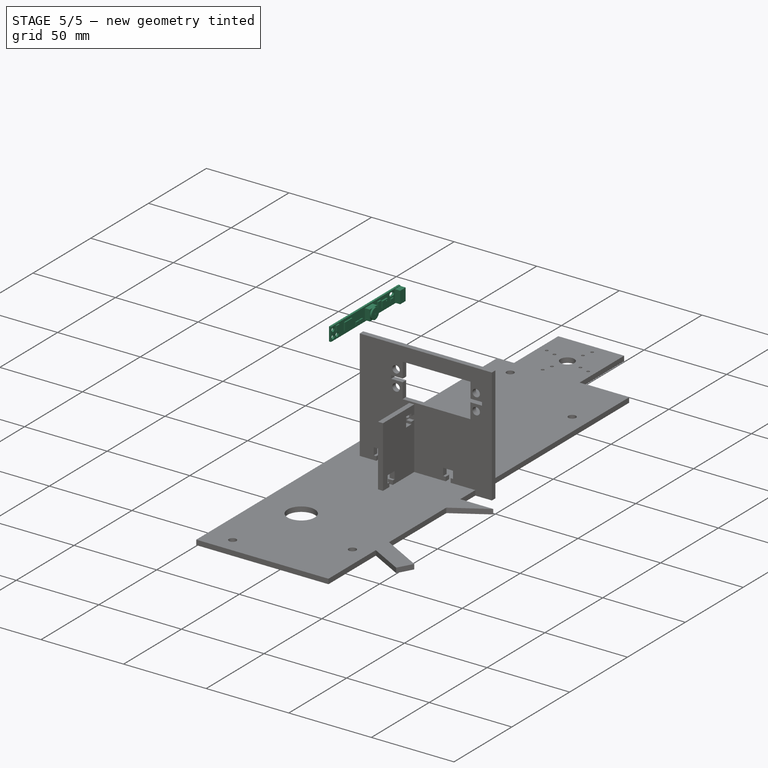
[diagram: stage 5 of 5 — iso view after this stage's code; geometry added in this stage tinted green]
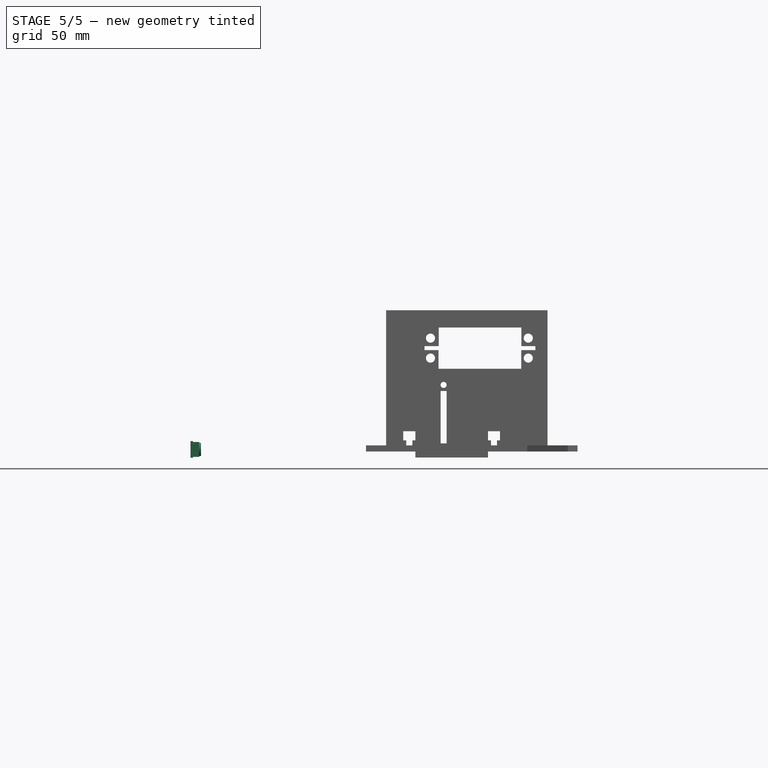
[diagram: stage 5 of 5 — front view after this stage's code; geometry added in this stage tinted green]
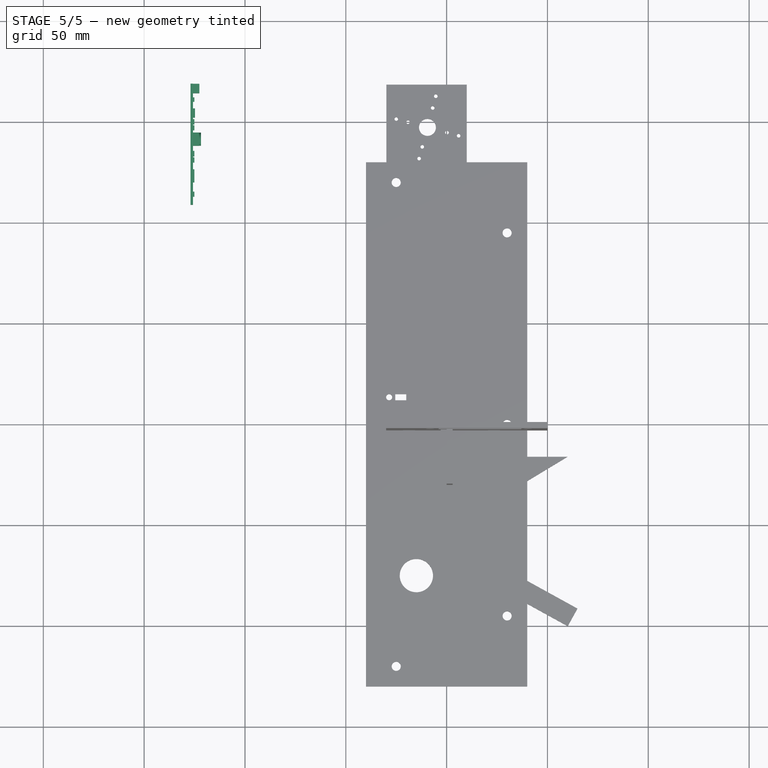
[diagram: stage 5 of 5 — top view after this stage's code; geometry added in this stage tinted green]
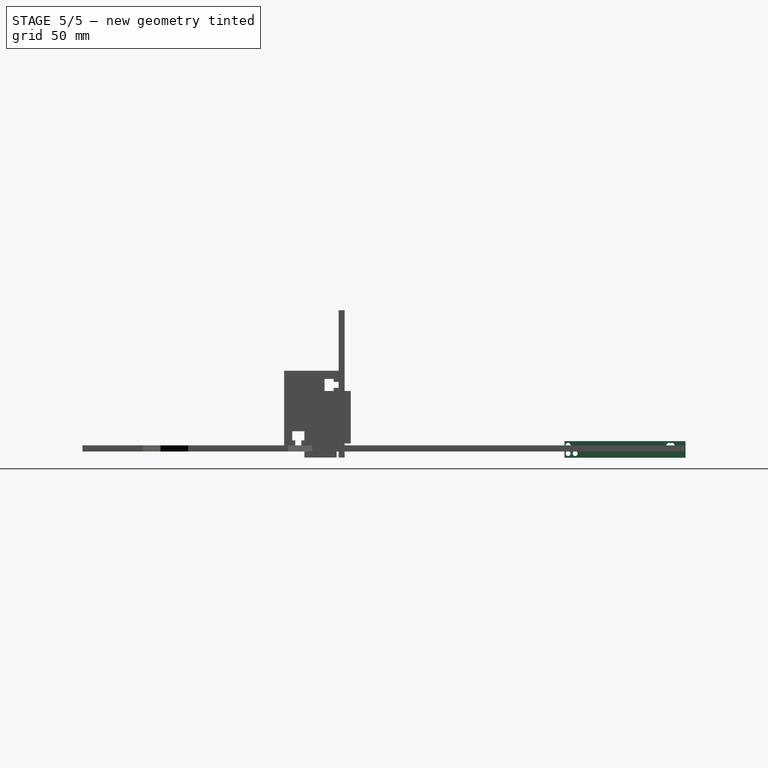
[diagram: stage 5 of 5 — right view after this stage's code; geometry added in this stage tinted green]
FEATURE [Part::Feature] Solid
  shape: bbox 1.061 x 1.061 x 1 mm, 4 faces (baked)
FEATURE [Part::Feature] Solid001
  shape: bbox 60 x 8.2 x 5.2 mm, 83 faces (baked)
FEATURE [Part::Compound2] Compound  label="camera-HBV-1315"
  Links = -> [Solid,Solid001]
  Placement = pos=(-127,139,1) rot=(-0.57735,0.57735,-0.57735;2.0944rad)
FEATURE [Sketcher::SketchObject] Sketch002
  FullyConstrained = true
  MapMode = 5
  Placement = pos=(0,0,3) rot=(0,0,1;0rad)
  Support = -> [Pad001]
  sketch-geometry (4):
    g0: GeomPoint X=10 Y=25 Z=0
    g1: GeomPoint X=10 Y=-25 Z=0
    g2: Circle CenterX=10 CenterY=25 CenterZ=0 NormalX=0 NormalY=0 NormalZ=1 AngleXU=0 Radius=2
    g3: Circle CenterX=10 CenterY=-25 CenterZ=0 NormalX=0 NormalY=0 NormalZ=1 AngleXU=0 Radius=2
  constraints (7):
    c: Symmetric(g0,g1,g-1)
    c: Distance(g0,g-2) = 10
    c: Distance(g0,g-1) = 25
    c: Coincident(g2,g0)
    c: Coincident(g3,g1)
    c: Equal(g2,g3)
    c: Diameter(g2) = 4
FEATURE [PartDesign::Hole] Hole
  BaseFeature = -> Pad001
  CustomThreadClearance = 0
  Depth = 162.97
  DepthType = 1
  Diameter = 4.5
  DrillForDepth = false
  DrillPoint = 1
  DrillPointAngle = 118
  HoleCutCountersinkAngle = 90
  HoleCutCustomValues = false
  HoleCutDepth = 0
  HoleCutDiameter = 6.1
  HoleCutType = 0
  ModelThread = false
  Profile = -> Sketch002
  Tapered = false
  TaperedAngle = 90
  ThreadClass = 0
  ThreadDepth = 162.97
  ThreadDepthType = 0
  ThreadDirection = 0
  ThreadFit = 0
  ThreadSize = 11
  ThreadType = 1
  Threaded = false
  UseCustomThreadClearance = false
FEATURE [Sketcher::SketchObject] Sketch003  label="CameraScrewsSketch"
  FullyConstrained = true
  MapMode = 5
  Placement = pos=(0,0,3) rot=(0,0,1;0rad)
  Support = -> [Hole]
  sketch-geometry (3):
    g0: Circle CenterX=-12 CenterY=23.3 CenterZ=0 NormalX=0 NormalY=0 NormalZ=1 AngleXU=0 Radius=1
    g1: Circle CenterX=-12 CenterY=-28.2 CenterZ=0 NormalX=0 NormalY=0 NormalZ=1 AngleXU=0 Radius=1
    g2: Circle CenterX=-8 CenterY=-24.7 CenterZ=0 NormalX=0 NormalY=0 NormalZ=1 AngleXU=0 Radius=1
  constraints (9):
    c: Distance(g1,g-2) = 12
    c: Distance(g0,g-2) = 12
    c: Distance(g2,g-2) = 8
    c: Distance(g0,g-1) = 23.3
    c: Distance(g2,g-1) = 24.7
    c: Distance(g1,g-1) = 28.2
    c: Equal(g0,g2)
    c: Equal(g2,g1)
    c: Diameter(g0) = 2
FEATURE [PartDesign::Hole] Hole001  label="CameraScrews"
  BaseFeature = -> Hole
  CustomThreadClearance = 0
  Depth = 162.97
  DepthType = 1
  Diameter = 1.6
  DrillForDepth = false
  DrillPoint = 1
  DrillPointAngle = 118
  HoleCutCountersinkAngle = 90
  HoleCutCustomValues = false
  HoleCutDepth = 0
  HoleCutDiameter = 6.1
  HoleCutType = 0
  ModelThread = false
  Profile = -> Sketch003
  Tapered = false
  TaperedAngle = 90
  ThreadClass = 0
  ThreadDepth = 162.97
  ThreadDepthType = 0
  ThreadDirection = 0
  ThreadFit = 0
  ThreadSize = 6
  ThreadType = 1
  Threaded = true
  UseCustomThreadClearance = false
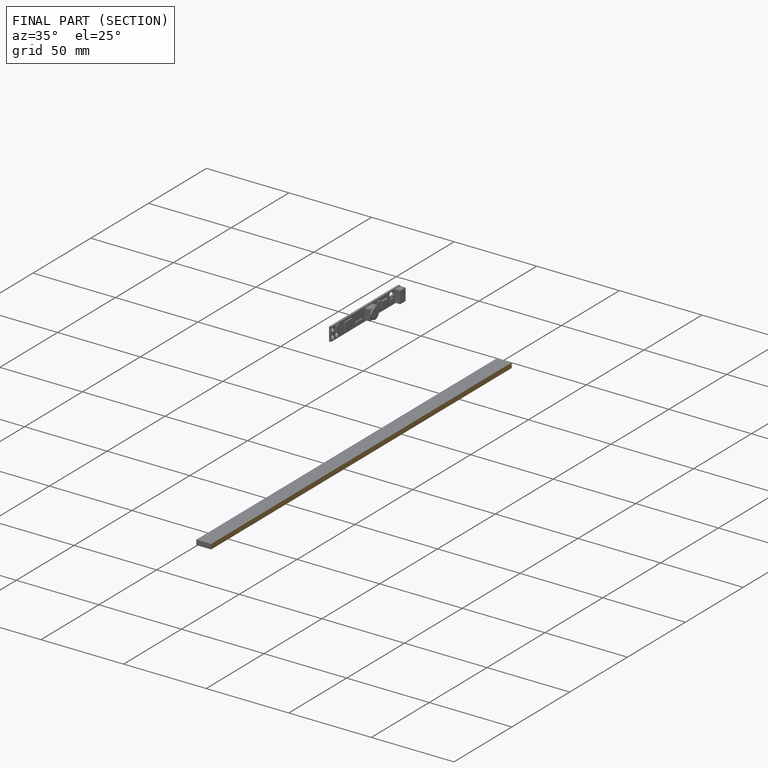
[diagram: finished part — half-section view (interior)]
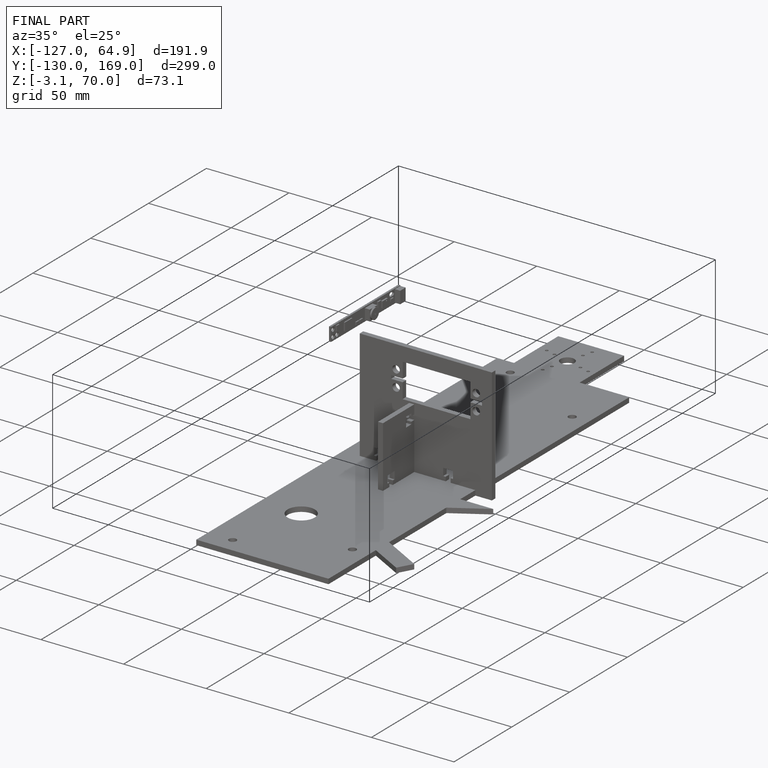
[diagram: finished part — iso view with bounding-box wireframe]
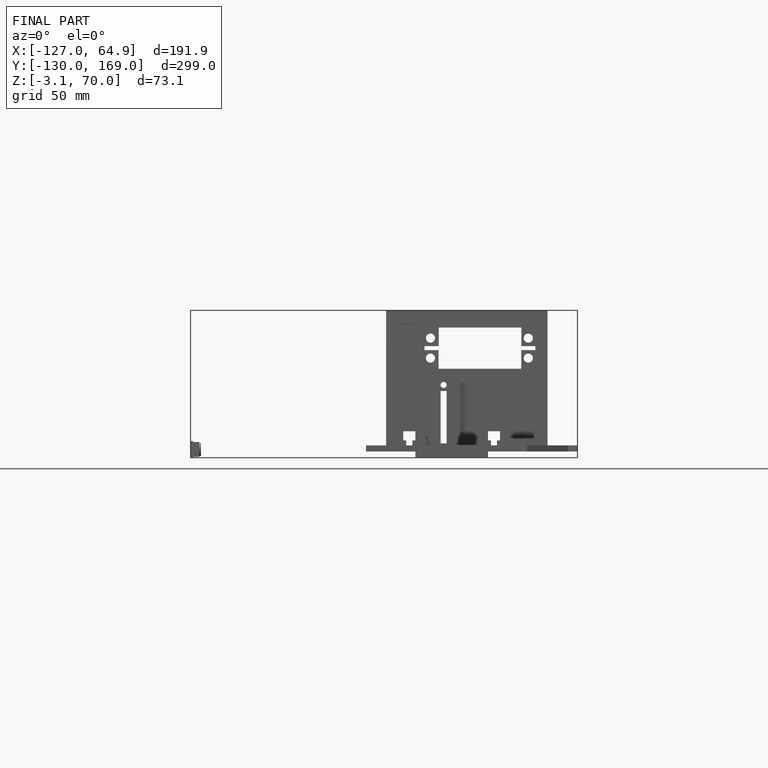
[diagram: finished part — front view with bounding-box wireframe]
